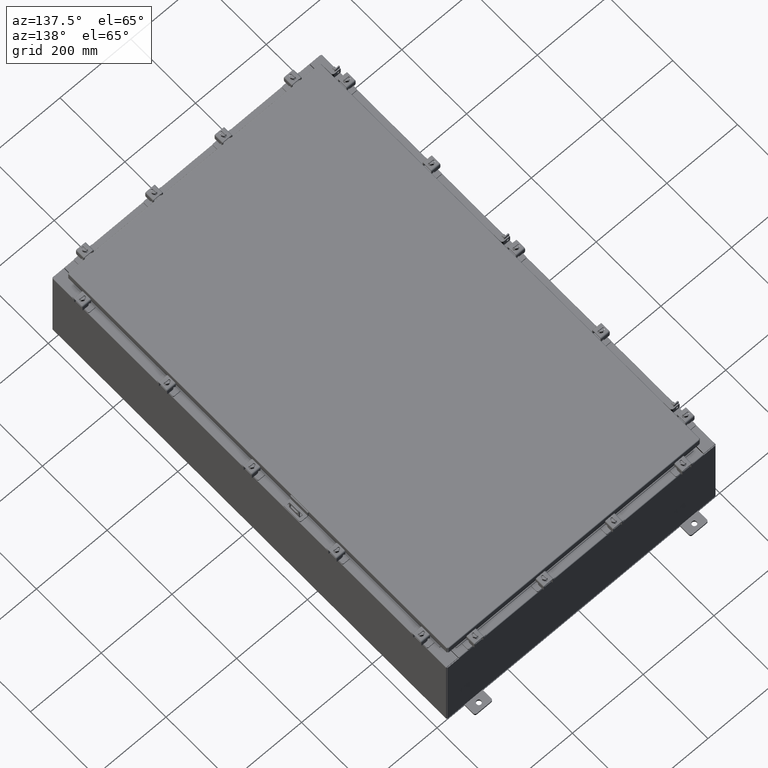
[diagram: clean part render]
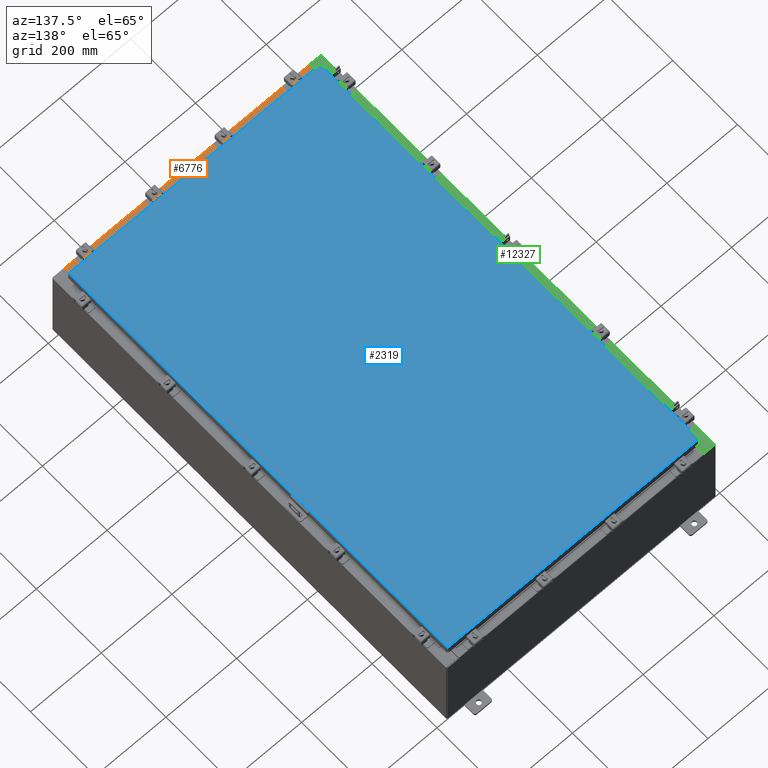
[diagram: same view with three faces highlighted in distinct colors, each labeled with its STEP entity id]
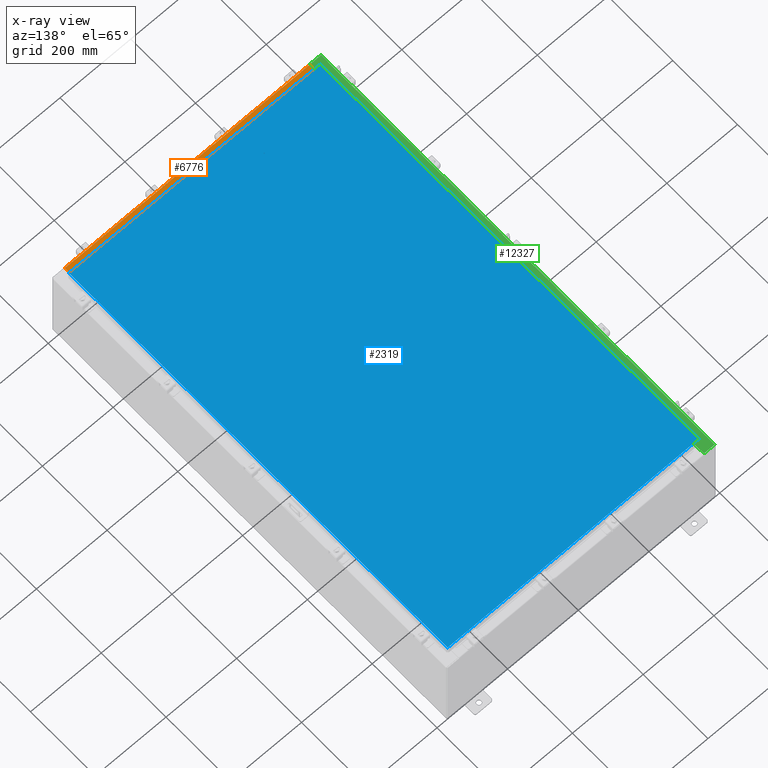
[diagram: x-ray of the same camera — body ghosted, the three highlighted faces saturated]
A machine part, auxiliary view with three faces highlighted in distinct colors.
The next image is the same camera in x-ray (body ghosted, the three faces saturated) — at least one of them is partly hidden behind the body in this view.
Their STEP definitions:

[orange] entity #6776 — the highlighted planar face has unit normal (-0, -0, 1).
#399 = VERTEX_POINT ( 'NONE', #24296 ) ;
#934 = VECTOR ( 'NONE', #3971, 39.37007874015748100 ) ;
#2020 = DIRECTION ( 'NONE',  ( -0.0000000000000000000, 1.000000000000000000, -3.566381192773190000E-015 ) ) ;
#2529 = CARTESIAN_POINT ( 'NONE',  ( 13.63719999999999800, -0.08770000000000047200, 5.000000000000000000 ) ) ;
#2956 = VERTEX_POINT ( 'NONE', #7406 ) ;
#3971 = DIRECTION ( 'NONE',  ( -1.000000000000000000, 0.0000000000000000000, 0.0000000000000000000 ) ) ;
#5496 = VERTEX_POINT ( 'NONE', #2529 ) ;
#6126 = LINE ( 'NONE', #21132, #15696 ) ;
#6776 = ADVANCED_FACE ( 'NONE', ( #17747 ), #21802, .T. ) ;
#7406 = CARTESIAN_POINT ( 'NONE',  ( 13.63719999999999800, -1.287299999999999900, 5.000000000000004400 ) ) ;
#7537 = EDGE_LOOP ( 'NONE', ( #18603, #20309, #8506, #23810 ) ) ;
#7550 = EDGE_CURVE ( 'NONE', #21569, #399, #22818, .T. ) ;
#8506 = ORIENTED_EDGE ( 'NONE', *, *, #21867, .F. ) ;
#8784 = EDGE_CURVE ( 'NONE', #5496, #399, #24224, .T. ) ;
#9667 = VECTOR ( 'NONE', #23432, 39.37007874015748100 ) ;
#12416 = CARTESIAN_POINT ( 'NONE',  ( -13.63720000000000400, -0.07469999999999973900, 5.000000000000000000 ) ) ;
#12675 = VECTOR ( 'NONE', #2020, 39.37007874015748100 ) ;
#13532 = DIRECTION ( 'NONE',  ( -0.0000000000000000000, -1.000000000000000000, 3.566381192773190000E-015 ) ) ;
#13883 = CARTESIAN_POINT ( 'NONE',  ( 3.513669507588167300E-018, -0.08770000000000081900, 5.000000000000000000 ) ) ;
#15696 = VECTOR ( 'NONE', #13532, 39.37007874015748100 ) ;
#17747 = FACE_OUTER_BOUND ( 'NONE', #7537, .T. ) ;
#18603 = ORIENTED_EDGE ( 'NONE', *, *, #7550, .F. ) ;
#19290 = EDGE_CURVE ( 'NONE', #2956, #21569, #21764, .T. ) ;
#19324 = DIRECTION ( 'NONE',  ( 0.0000000000000000000, -1.000000000000000000, 3.566381192773190000E-015 ) ) ;
#19489 = DIRECTION ( 'NONE',  ( 0.0000000000000000000, 3.566381192773190000E-015, 1.000000000000000000 ) ) ;
#20152 = CARTESIAN_POINT ( 'NONE',  ( 0.0000000000000000000, 1.782631094477737600E-014, 5.000000000000000000 ) ) ;
#20188 = AXIS2_PLACEMENT_3D ( 'NONE', #20152, #19489, #19324 ) ;
#20309 = ORIENTED_EDGE ( 'NONE', *, *, #19290, .F. ) ;
#20483 = CARTESIAN_POINT ( 'NONE',  ( -13.63720000000000400, -1.287299999999999200, 5.000000000000004400 ) ) ;
#21132 = CARTESIAN_POINT ( 'NONE',  ( 13.63719999999999800, -1.300299999999999800, 5.000000000000004400 ) ) ;
#21569 = VERTEX_POINT ( 'NONE', #20483 ) ;
#21764 = LINE ( 'NONE', #23010, #934 ) ;
#21802 = PLANE ( 'NONE',  #20188 ) ;
#21867 = EDGE_CURVE ( 'NONE', #5496, #2956, #6126, .T. ) ;
#22818 = LINE ( 'NONE', #12416, #12675 ) ;
#23010 = CARTESIAN_POINT ( 'NONE',  ( 13.63719999999999800, -1.287299999999999900, 5.000000000000002700 ) ) ;
#23432 = DIRECTION ( 'NONE',  ( -1.000000000000000000, -4.006464660875052000E-017, 1.428858021605520200E-031 ) ) ;
#23810 = ORIENTED_EDGE ( 'NONE', *, *, #8784, .T. ) ;
#24224 = LINE ( 'NONE', #13883, #9667 ) ;
#24296 = CARTESIAN_POINT ( 'NONE',  ( -13.63720000000000400, -0.08770000000000081900, 5.000000000000000000 ) ) ;

[blue] entity #2319 — the highlighted planar face has unit normal (0, 0, -1).
#225 = CARTESIAN_POINT ( 'NONE',  ( -13.99029999999999100, -23.00630000000000000, 1.997663845366992600E-015 ) ) ;
#559 = LINE ( 'NONE', #225, #20216 ) ;
#646 = ORIENTED_EDGE ( 'NONE', *, *, #1756, .T. ) ;
#1756 = EDGE_CURVE ( 'NONE', #24565, #7685, #3358, .T. ) ;
#2096 = CARTESIAN_POINT ( 'NONE',  ( 13.99030000000000000, -23.00629999999999600, -1.297627796990525000E-015 ) ) ;
#2319 = ADVANCED_FACE ( 'NONE', ( #7736 ), #20213, .F. ) ;
#3358 = LINE ( 'NONE', #2096, #22964 ) ;
#4787 = AXIS2_PLACEMENT_3D ( 'NONE', #20269, #20507, #20538 ) ;
#5104 = EDGE_CURVE ( 'NONE', #17618, #24565, #559, .T. ) ;
#6316 = CARTESIAN_POINT ( 'NONE',  ( 13.99029999999999800, 23.00630000000000000, 1.946441695485787500E-015 ) ) ;
#6448 = CARTESIAN_POINT ( 'NONE',  ( 13.99030000000000000, -23.00629999999999600, -1.297627796990525000E-015 ) ) ;
#7000 = DIRECTION ( 'NONE',  ( 0.0000000000000000000, 1.000000000000000000, 0.0000000000000000000 ) ) ;
#7685 = VERTEX_POINT ( 'NONE', #6316 ) ;
#7736 = FACE_OUTER_BOUND ( 'NONE', #18049, .T. ) ;
#8254 = VECTOR ( 'NONE', #14225, 39.37007874015748100 ) ;
#8760 = DIRECTION ( 'NONE',  ( 1.000000000000000000, -0.0000000000000000000, -0.0000000000000000000 ) ) ;
#9255 = CARTESIAN_POINT ( 'NONE',  ( -13.99029999999999800, 23.00629999999999600, -2.048885995248197400E-016 ) ) ;
#9475 = CARTESIAN_POINT ( 'NONE',  ( -13.99029999999999800, 23.00629999999999600, -2.048885995248197400E-016 ) ) ;
#12296 = CARTESIAN_POINT ( 'NONE',  ( 13.99029999999999800, 23.00630000000000000, 1.946441695485787500E-015 ) ) ;
#14225 = DIRECTION ( 'NONE',  ( -1.000000000000000000, -0.0000000000000000000, -0.0000000000000000000 ) ) ;
#15554 = EDGE_CURVE ( 'NONE', #16589, #17618, #22802, .T. ) ;
#15775 = CARTESIAN_POINT ( 'NONE',  ( -13.99029999999999200, -23.00630000000000000, 2.006200870347193400E-015 ) ) ;
#16301 = ORIENTED_EDGE ( 'NONE', *, *, #5104, .T. ) ;
#16589 = VERTEX_POINT ( 'NONE', #9475 ) ;
#17618 = VERTEX_POINT ( 'NONE', #15775 ) ;
#17756 = VECTOR ( 'NONE', #22569, 39.37007874015748100 ) ;
#18049 = EDGE_LOOP ( 'NONE', ( #16301, #646, #23887, #22024 ) ) ;
#20213 = PLANE ( 'NONE',  #4787 ) ;
#20216 = VECTOR ( 'NONE', #8760, 39.37007874015748100 ) ;
#20269 = CARTESIAN_POINT ( 'NONE',  ( 0.0000000000000000000, 0.0000000000000000000, 0.0000000000000000000 ) ) ;
#20507 = DIRECTION ( 'NONE',  ( 0.0000000000000000000, 0.0000000000000000000, -1.000000000000000000 ) ) ;
#20538 = DIRECTION ( 'NONE',  ( -1.000000000000000000, 0.0000000000000000000, -0.0000000000000000000 ) ) ;
#21348 = EDGE_CURVE ( 'NONE', #7685, #16589, #23419, .T. ) ;
#22024 = ORIENTED_EDGE ( 'NONE', *, *, #15554, .T. ) ;
#22569 = DIRECTION ( 'NONE',  ( 0.0000000000000000000, -1.000000000000000000, 0.0000000000000000000 ) ) ;
#22802 = LINE ( 'NONE', #9255, #17756 ) ;
#22964 = VECTOR ( 'NONE', #7000, 39.37007874015748100 ) ;
#23419 = LINE ( 'NONE', #12296, #8254 ) ;
#23887 = ORIENTED_EDGE ( 'NONE', *, *, #21348, .T. ) ;
#24565 = VERTEX_POINT ( 'NONE', #6448 ) ;

[green] entity #12327 — the highlighted planar face has unit normal (0, -0, -1).
#180 = AXIS2_PLACEMENT_3D ( 'NONE', #12730, #12902, #13534 ) ;
#383 = ORIENTED_EDGE ( 'NONE', *, *, #11029, .F. ) ;
#847 = DIRECTION ( 'NONE',  ( -1.000000000000000000, 4.379057701015053300E-047, -7.132762385546384700E-015 ) ) ;
#1212 = LINE ( 'NONE', #8456, #19657 ) ;
#1328 = ORIENTED_EDGE ( 'NONE', *, *, #2057, .F. ) ;
#1392 = ORIENTED_EDGE ( 'NONE', *, *, #14576, .T. ) ;
#1419 = CARTESIAN_POINT ( 'NONE',  ( -13.69970000000003900, 22.63110000000000400, 9.925300000000007100 ) ) ;
#1956 = ORIENTED_EDGE ( 'NONE', *, *, #12666, .T. ) ;
#1996 = CARTESIAN_POINT ( 'NONE',  ( -7.105562016127586800E-014, -23.92529999999998200, 9.925300000000104800 ) ) ;
#2057 = EDGE_CURVE ( 'NONE', #15679, #6698, #8674, .T. ) ;
#2274 = VERTEX_POINT ( 'NONE', #21510 ) ;
#2536 = CARTESIAN_POINT ( 'NONE',  ( -13.75005000000003700, 22.59375000000000000, 9.925300000000007100 ) ) ;
#2921 = LINE ( 'NONE', #16757, #12392 ) ;
#3009 = LINE ( 'NONE', #1419, #11874 ) ;
#3322 = DIRECTION ( 'NONE',  ( -1.000000000000000000, -8.681145560800197900E-014, 4.340572780400098900E-014 ) ) ;
#3618 = VECTOR ( 'NONE', #847, 39.37007874015748100 ) ;
#3637 = LINE ( 'NONE', #5808, #18233 ) ;
#3914 = CARTESIAN_POINT ( 'NONE',  ( -13.75005000000003700, -22.59374999999997500, 9.925300000000008900 ) ) ;
#4273 = VERTEX_POINT ( 'NONE', #3914 ) ;
#4602 = CARTESIAN_POINT ( 'NONE',  ( -13.75005000000003700, 22.59375000000000000, 9.925300000000008900 ) ) ;
#4710 = EDGE_CURVE ( 'NONE', #13714, #18605, #8893, .T. ) ;
#4900 = EDGE_CURVE ( 'NONE', #18222, #9890, #15433, .T. ) ;
#5585 = VERTEX_POINT ( 'NONE', #13594 ) ;
#5808 = CARTESIAN_POINT ( 'NONE',  ( -13.75005000000003700, -22.63109999999997500, 9.925300000000008900 ) ) ;
#5849 = VERTEX_POINT ( 'NONE', #23618 ) ;
#5968 = EDGE_CURVE ( 'NONE', #5849, #23228, #2921, .T. ) ;
#5984 = CARTESIAN_POINT ( 'NONE',  ( -13.71270000000003900, -22.59374999999997500, 9.925300000000008900 ) ) ;
#6190 = DIRECTION ( 'NONE',  ( 0.0000000000000000000, 1.000000000000000000, -4.567295697298281900E-017 ) ) ;
#6274 = LINE ( 'NONE', #4602, #15831 ) ;
#6698 = VERTEX_POINT ( 'NONE', #2536 ) ;
#7054 = VECTOR ( 'NONE', #6190, 39.37007874015748100 ) ;
#7816 = CARTESIAN_POINT ( 'NONE',  ( -13.71270000000003900, 22.59375000000000000, 9.925300000000008900 ) ) ;
#7919 = DIRECTION ( 'NONE',  ( 7.132762385546384700E-015, -4.567295697298280600E-017, -1.000000000000000000 ) ) ;
#8371 = ORIENTED_EDGE ( 'NONE', *, *, #20829, .F. ) ;
#8456 = CARTESIAN_POINT ( 'NONE',  ( -13.71270000000003900, -22.59374999999997500, 9.925300000000008900 ) ) ;
#8668 = LINE ( 'NONE', #12197, #3618 ) ;
#8674 = CIRCLE ( 'NONE', #180, 0.01867499999999949400 ) ;
#8885 = CIRCLE ( 'NONE', #18332, 0.01867499999999949400 ) ;
#8893 = LINE ( 'NONE', #19378, #24046 ) ;
#9013 = CARTESIAN_POINT ( 'NONE',  ( -13.75005000000003700, -22.61242499999997300, 9.925300000000008900 ) ) ;
#9430 = CARTESIAN_POINT ( 'NONE',  ( -14.91230000000003900, -23.92529999999998200, 9.925299999999998200 ) ) ;
#9890 = VERTEX_POINT ( 'NONE', #5984 ) ;
#10077 = LINE ( 'NONE', #1996, #14565 ) ;
#10350 = VECTOR ( 'NONE', #10740, 39.37007874015748100 ) ;
#10740 = DIRECTION ( 'NONE',  ( -0.0000000000000000000, -1.000000000000000000, -0.0000000000000000000 ) ) ;
#10880 = DIRECTION ( 'NONE',  ( 1.000000000000000000, 0.0000000000000000000, 0.0000000000000000000 ) ) ;
#11029 = EDGE_CURVE ( 'NONE', #19643, #2274, #3637, .T. ) ;
#11393 = CARTESIAN_POINT ( 'NONE',  ( -13.75005000000003700, 22.63110000000000000, 9.925300000000007100 ) ) ;
#11869 = CARTESIAN_POINT ( 'NONE',  ( -13.71270000000003900, 22.59375000000000000, 9.925300000000008900 ) ) ;
#11874 = VECTOR ( 'NONE', #3322, 39.37007874015748100 ) ;
#11920 = AXIS2_PLACEMENT_3D ( 'NONE', #17435, #7919, #21271 ) ;
#12038 = EDGE_CURVE ( 'NONE', #5849, #15679, #3009, .T. ) ;
#12197 = CARTESIAN_POINT ( 'NONE',  ( -7.105562016127584200E-014, 23.92529999999999600, 9.925300000000103000 ) ) ;
#12327 = ADVANCED_FACE ( 'NONE', ( #16663 ), #13580, .F. ) ;
#12392 = VECTOR ( 'NONE', #16438, 39.37007874015748100 ) ;
#12666 = EDGE_CURVE ( 'NONE', #13714, #5585, #10077, .T. ) ;
#12730 = CARTESIAN_POINT ( 'NONE',  ( -13.75005000000003700, 22.61242500000000200, 9.925300000000008900 ) ) ;
#12902 = DIRECTION ( 'NONE',  ( -7.132762385546384700E-015, 4.567295697298281300E-017, 1.000000000000000000 ) ) ;
#13534 = DIRECTION ( 'NONE',  ( 1.000000000000000000, 0.0000000000000000000, 0.0000000000000000000 ) ) ;
#13580 = PLANE ( 'NONE',  #11920 ) ;
#13594 = CARTESIAN_POINT ( 'NONE',  ( -13.69970000000003900, -23.92529999999998200, 9.925300000000007100 ) ) ;
#13714 = VERTEX_POINT ( 'NONE', #9430 ) ;
#14500 = CARTESIAN_POINT ( 'NONE',  ( -14.91230000000003900, 23.92529999999999600, 9.925299999999998200 ) ) ;
#14565 = VECTOR ( 'NONE', #21018, 39.37007874015748100 ) ;
#14576 = EDGE_CURVE ( 'NONE', #5585, #2274, #16606, .T. ) ;
#15433 = LINE ( 'NONE', #11869, #10350 ) ;
#15679 = VERTEX_POINT ( 'NONE', #11393 ) ;
#15831 = VECTOR ( 'NONE', #17906, 39.37007874015748100 ) ;
#15920 = ORIENTED_EDGE ( 'NONE', *, *, #23023, .F. ) ;
#16438 = DIRECTION ( 'NONE',  ( 0.0000000000000000000, 1.000000000000000000, -4.567295697298281900E-017 ) ) ;
#16606 = LINE ( 'NONE', #19560, #7054 ) ;
#16663 = FACE_OUTER_BOUND ( 'NONE', #17095, .T. ) ;
#16757 = CARTESIAN_POINT ( 'NONE',  ( -13.69970000000003900, 4.533177998439465900E-016, 9.925300000000007100 ) ) ;
#17095 = EDGE_LOOP ( 'NONE', ( #17415, #21257, #18347, #21969, #1956, #1392, #383, #8371, #15920, #20084, #22128, #1328 ) ) ;
#17415 = ORIENTED_EDGE ( 'NONE', *, *, #12038, .F. ) ;
#17435 = CARTESIAN_POINT ( 'NONE',  ( -7.105562016127585500E-014, 4.533177998439511200E-016, 9.925300000000104800 ) ) ;
#17906 = DIRECTION ( 'NONE',  ( 1.000000000000000000, 0.0000000000000000000, 0.0000000000000000000 ) ) ;
#18222 = VERTEX_POINT ( 'NONE', #7816 ) ;
#18233 = VECTOR ( 'NONE', #19160, 39.37007874015748100 ) ;
#18287 = CARTESIAN_POINT ( 'NONE',  ( -13.75005000000003700, -22.63109999999997500, 9.925300000000007100 ) ) ;
#18332 = AXIS2_PLACEMENT_3D ( 'NONE', #9013, #22318, #10880 ) ;
#18347 = ORIENTED_EDGE ( 'NONE', *, *, #18885, .T. ) ;
#18424 = EDGE_CURVE ( 'NONE', #6698, #18222, #6274, .T. ) ;
#18605 = VERTEX_POINT ( 'NONE', #14500 ) ;
#18694 = DIRECTION ( 'NONE',  ( 4.567295697298285000E-017, 1.000000000000000000, -4.567295697298248600E-017 ) ) ;
#18885 = EDGE_CURVE ( 'NONE', #23228, #18605, #8668, .T. ) ;
#19160 = DIRECTION ( 'NONE',  ( 1.000000000000000000, -8.681145560800197900E-014, -4.340572780400098900E-014 ) ) ;
#19378 = CARTESIAN_POINT ( 'NONE',  ( -14.91230000000003700, 23.92529999999999600, 9.925299999999998200 ) ) ;
#19560 = CARTESIAN_POINT ( 'NONE',  ( -13.69970000000003900, 4.533177998439465900E-016, 9.925300000000007100 ) ) ;
#19643 = VERTEX_POINT ( 'NONE', #18287 ) ;
#19657 = VECTOR ( 'NONE', #21771, 39.37007874015748100 ) ;
#20084 = ORIENTED_EDGE ( 'NONE', *, *, #4900, .F. ) ;
#20829 = EDGE_CURVE ( 'NONE', #4273, #19643, #8885, .T. ) ;
#21018 = DIRECTION ( 'NONE',  ( 1.000000000000000000, -4.379057701015053300E-047, 7.132762385546384700E-015 ) ) ;
#21257 = ORIENTED_EDGE ( 'NONE', *, *, #5968, .T. ) ;
#21271 = DIRECTION ( 'NONE',  ( -1.000000000000000000, 0.0000000000000000000, -7.132762385546384700E-015 ) ) ;
#21510 = CARTESIAN_POINT ( 'NONE',  ( -13.69970000000003900, -22.63109999999998200, 9.925300000000007100 ) ) ;
#21771 = DIRECTION ( 'NONE',  ( -1.000000000000000000, 0.0000000000000000000, 0.0000000000000000000 ) ) ;
#21969 = ORIENTED_EDGE ( 'NONE', *, *, #4710, .F. ) ;
#22128 = ORIENTED_EDGE ( 'NONE', *, *, #18424, .F. ) ;
#22318 = DIRECTION ( 'NONE',  ( -7.132762385546384700E-015, 4.567295697298281300E-017, 1.000000000000000000 ) ) ;
#23023 = EDGE_CURVE ( 'NONE', #9890, #4273, #1212, .T. ) ;
#23228 = VERTEX_POINT ( 'NONE', #24217 ) ;
#23618 = CARTESIAN_POINT ( 'NONE',  ( -13.69970000000003900, 22.63110000000000400, 9.925300000000007100 ) ) ;
#24046 = VECTOR ( 'NONE', #18694, 39.37007874015748100 ) ;
#24217 = CARTESIAN_POINT ( 'NONE',  ( -13.69970000000003900, 23.92529999999999600, 9.925300000000005300 ) ) ;